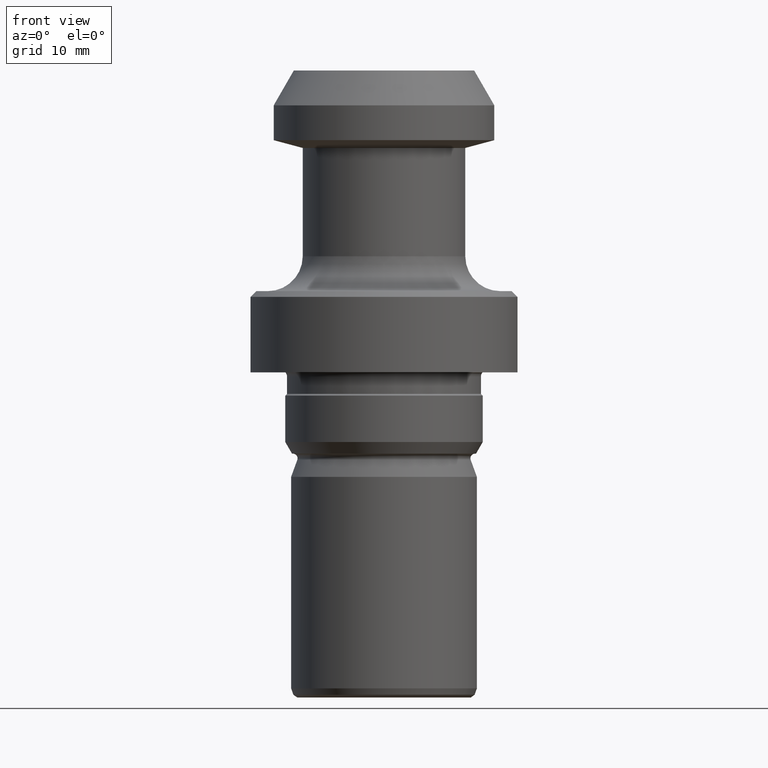
[diagram: clean part render]
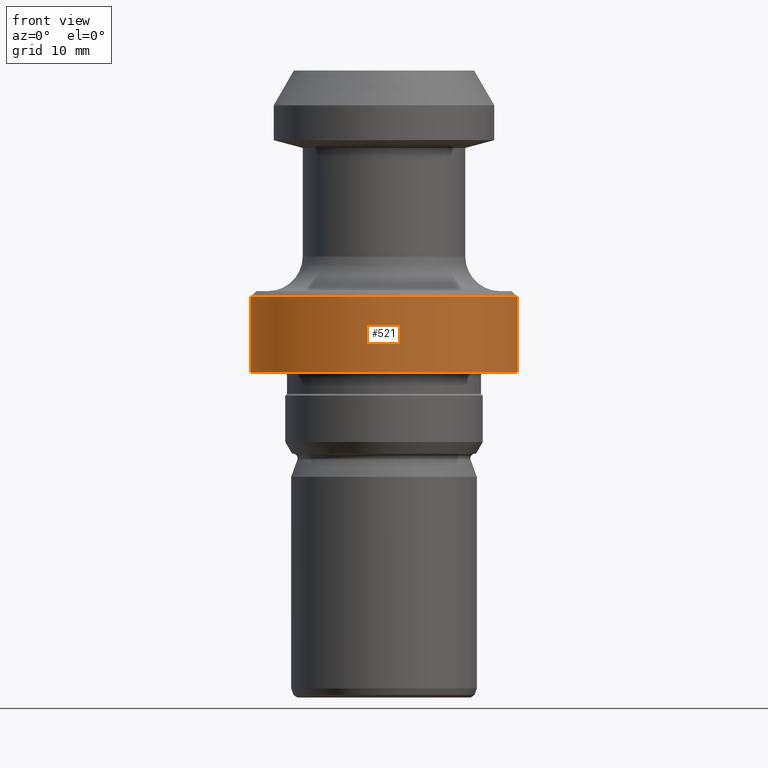
[diagram: same view with one face highlighted and labeled with its STEP entity id]
A machine part, front view. The second image highlights one B-rep face of the part: STEP entity #521.
In plain terms, the highlighted cylindrical surface (partial cylindrical patch) has radius 11.5 mm, axis along (-0, -0, 1).
Its self-contained STEP definition (entity closure, byte-faithful):
#20 = CARTESIAN_POINT ( 'NONE',  ( 0.0000000000000000000, 0.0000000000000000000, -26.00000000000000400 ) ) ;
#47 = VERTEX_POINT ( 'NONE', #534 ) ;
#60 = CIRCLE ( 'NONE', #113, 11.50000000000000000 ) ;
#72 = EDGE_CURVE ( 'NONE', #860, #47, #934, .T. ) ;
#80 = DIRECTION ( 'NONE',  ( 1.000000000000000000, 0.0000000000000000000, 0.0000000000000000000 ) ) ;
#95 = EDGE_LOOP ( 'NONE', ( #823, #871, #783, #704 ) ) ;
#112 = DIRECTION ( 'NONE',  ( 1.000000000000000000, 0.0000000000000000000, 0.0000000000000000000 ) ) ;
#113 = AXIS2_PLACEMENT_3D ( 'NONE', #20, #936, #112 ) ;
#211 = CARTESIAN_POINT ( 'NONE',  ( -11.50000000000000000, 1.408343819019456200E-015, 0.0000000000000000000 ) ) ;
#281 = VERTEX_POINT ( 'NONE', #690 ) ;
#311 = AXIS2_PLACEMENT_3D ( 'NONE', #479, #928, #400 ) ;
#400 = DIRECTION ( 'NONE',  ( 1.000000000000000000, 0.0000000000000000000, 0.0000000000000000000 ) ) ;
#445 = VECTOR ( 'NONE', #1120, 1000.000000000000000 ) ;
#455 = CYLINDRICAL_SURFACE ( 'NONE', #311, 11.50000000000000000 ) ;
#479 = CARTESIAN_POINT ( 'NONE',  ( 0.0000000000000000000, 0.0000000000000000000, 0.0000000000000000000 ) ) ;
#480 = FACE_OUTER_BOUND ( 'NONE', #95, .T. ) ;
#495 = VECTOR ( 'NONE', #648, 1000.000000000000000 ) ;
#521 = ADVANCED_FACE ( 'NONE', ( #480 ), #455, .T. ) ;
#522 = LINE ( 'NONE', #211, #495 ) ;
#534 = CARTESIAN_POINT ( 'NONE',  ( 11.50000000000000000, 0.0000000000000000000, -19.50000000000000000 ) ) ;
#561 = AXIS2_PLACEMENT_3D ( 'NONE', #893, #911, #80 ) ;
#574 = CARTESIAN_POINT ( 'NONE',  ( 11.50000000000000000, 0.0000000000000000000, 0.0000000000000000000 ) ) ;
#648 = DIRECTION ( 'NONE',  ( -0.0000000000000000000, -0.0000000000000000000, 1.000000000000000000 ) ) ;
#690 = CARTESIAN_POINT ( 'NONE',  ( 11.50000000000000000, 0.0000000000000000000, -26.00000000000000400 ) ) ;
#704 = ORIENTED_EDGE ( 'NONE', *, *, #72, .F. ) ;
#724 = CARTESIAN_POINT ( 'NONE',  ( -11.50000000000000000, 1.408343819019456200E-015, -19.50000000000000000 ) ) ;
#738 = CARTESIAN_POINT ( 'NONE',  ( -11.50000000000000000, 1.408343819019456200E-015, -26.00000000000000400 ) ) ;
#753 = EDGE_CURVE ( 'NONE', #901, #281, #60, .T. ) ;
#765 = EDGE_CURVE ( 'NONE', #901, #860, #522, .T. ) ;
#783 = ORIENTED_EDGE ( 'NONE', *, *, #1040, .T. ) ;
#823 = ORIENTED_EDGE ( 'NONE', *, *, #765, .F. ) ;
#860 = VERTEX_POINT ( 'NONE', #724 ) ;
#871 = ORIENTED_EDGE ( 'NONE', *, *, #753, .T. ) ;
#893 = CARTESIAN_POINT ( 'NONE',  ( 0.0000000000000000000, 0.0000000000000000000, -19.50000000000000000 ) ) ;
#901 = VERTEX_POINT ( 'NONE', #738 ) ;
#908 = LINE ( 'NONE', #574, #445 ) ;
#911 = DIRECTION ( 'NONE',  ( -0.0000000000000000000, -0.0000000000000000000, 1.000000000000000000 ) ) ;
#928 = DIRECTION ( 'NONE',  ( -0.0000000000000000000, -0.0000000000000000000, 1.000000000000000000 ) ) ;
#934 = CIRCLE ( 'NONE', #561, 11.50000000000000000 ) ;
#936 = DIRECTION ( 'NONE',  ( -0.0000000000000000000, -0.0000000000000000000, 1.000000000000000000 ) ) ;
#1040 = EDGE_CURVE ( 'NONE', #281, #47, #908, .T. ) ;
#1120 = DIRECTION ( 'NONE',  ( -0.0000000000000000000, -0.0000000000000000000, 1.000000000000000000 ) ) ;